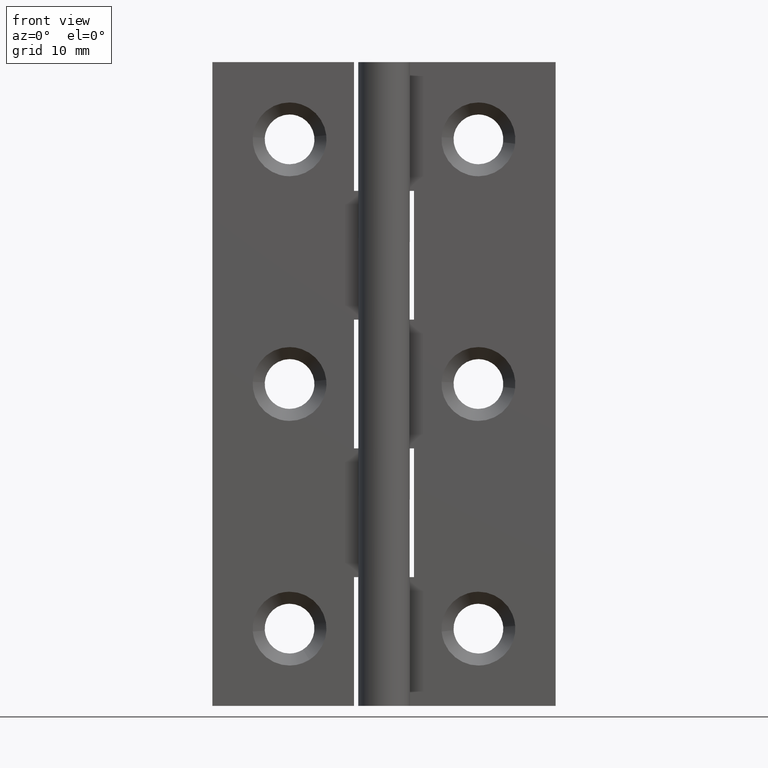
[diagram: clean part render]
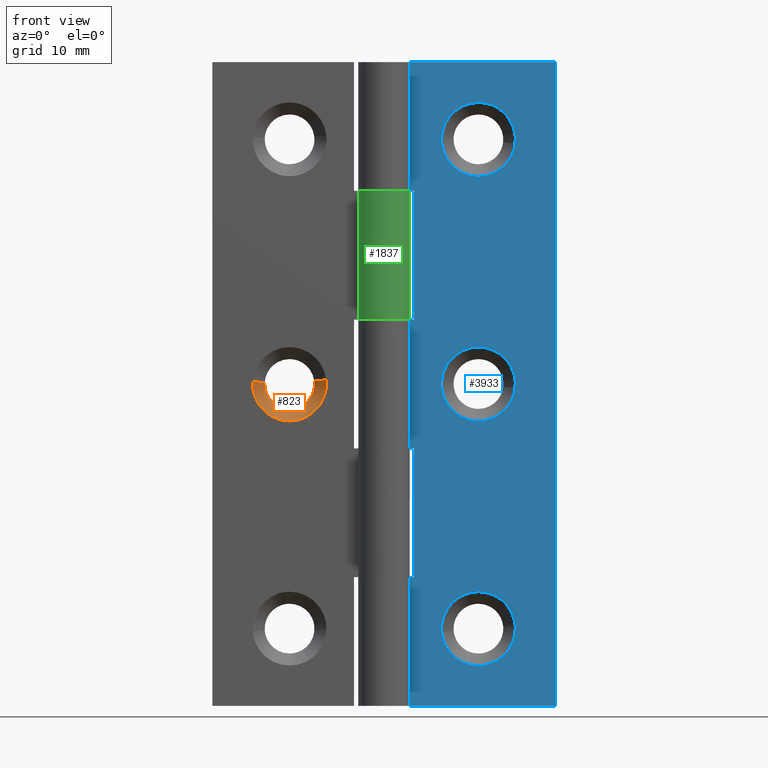
[diagram: same view with three faces highlighted in distinct colors, each labeled with its STEP entity id]
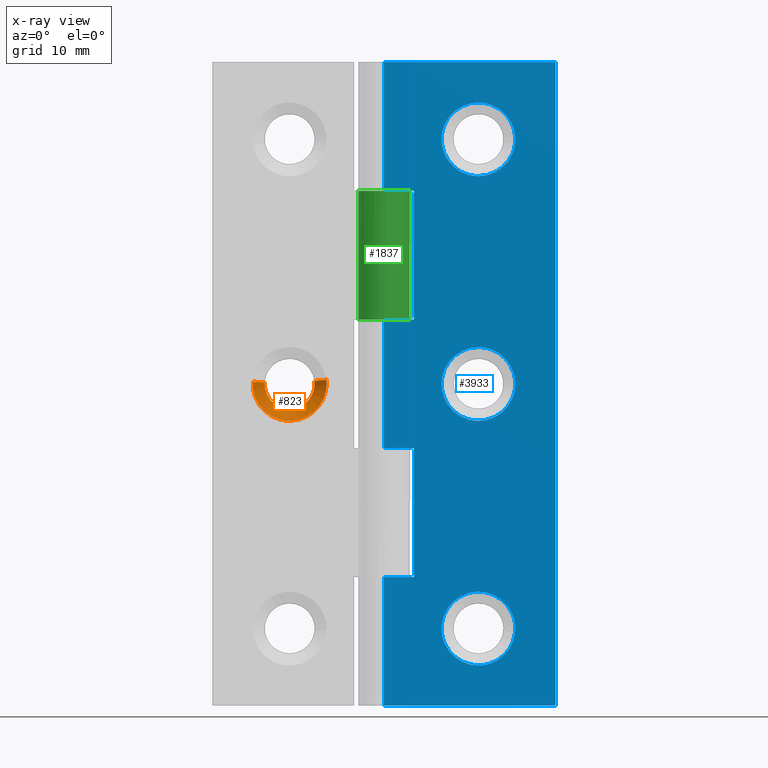
[diagram: x-ray of the same camera — body ghosted, the three highlighted faces saturated]
A machine part, front view with three faces highlighted in distinct colors.
The next image is the same camera in x-ray (body ghosted, the three faces saturated) — at least one of them is partly hidden behind the body in this view.
Their STEP definitions:

[orange] entity #823 — the highlighted face is a freeform B-spline surface patch.
#641=CARTESIAN_POINT('',(-8.118939338921578,2.899999999821298,37.830891928313221));
#642=VERTEX_POINT('',#641);
#658=CARTESIAN_POINT('',(-6.728082468202308,1.499999999970754,37.990632858429848));
#659=VERTEX_POINT('',#658);
#660=CARTESIAN_POINT('',(-8.118939338921578,2.899999999821298,37.830891928313221));
#661=CARTESIAN_POINT('',(-6.728082468202308,1.499999999970754,37.990632858429848));
#662=QUASI_UNIFORM_CURVE('',1,(#660,#661),.UNSPECIFIED.,.F.,.U.);
#663=EDGE_CURVE('',#642,#659,#662,.T.);
#680=CARTESIAN_POINT('',(-15.291979633218290,1.499999999994760,37.762508720016022));
#681=VERTEX_POINT('',#680);
#695=CARTESIAN_POINT('',(-13.894590915422841,2.899999999999957,37.677040764661271));
#696=VERTEX_POINT('',#695);
#697=CARTESIAN_POINT('',(-13.894590915422841,2.899999999999957,37.677040764661271));
#698=CARTESIAN_POINT('',(-15.291979633218290,1.499999999994760,37.762508720016022));
#699=QUASI_UNIFORM_CURVE('',1,(#697,#698),.UNSPECIFIED.,.F.,.U.);
#700=EDGE_CURVE('',#696,#681,#699,.T.);
#718=CARTESIAN_POINT('',(-13.859656197478650,2.935000000000001,37.674904065767372));
#719=CARTESIAN_POINT('',(-14.034560263246012,2.935000000000001,34.815247868288708));
#720=CARTESIAN_POINT('',(-11.174904065767370,2.935000000000001,34.640343802521350));
#721=CARTESIAN_POINT('',(-8.315247868288717,2.935000000000001,34.465439736753979));
#722=CARTESIAN_POINT('',(-8.140343802521352,2.935000000000001,37.325095934232642));
#723=CARTESIAN_POINT('',(-8.124962075998962,2.935000000000001,37.576584939846612));
#724=CARTESIAN_POINT('',(-8.153710760806678,2.935000000000000,37.826898404481149));
#725=CARTESIAN_POINT('',(-15.327787719107411,1.464125000000000,37.764698836355699));
#726=CARTESIAN_POINT('',(-15.592486555463113,1.464125000000000,33.436911117248293));
#727=CARTESIAN_POINT('',(-11.264698836355700,1.464125000000000,33.172212280892587));
#728=CARTESIAN_POINT('',(-6.936911117248284,1.464125000000000,32.907513444536896));
#729=CARTESIAN_POINT('',(-6.672212280892586,1.464125000000000,37.235301163644301));
#730=CARTESIAN_POINT('',(-6.648933661875041,1.464125000000000,37.615903220264371));
#731=CARTESIAN_POINT('',(-6.692441760911923,1.464125000000000,37.994726219731120));
#739=(BOUNDED_SURFACE()B_SPLINE_SURFACE(2,1,((#718,#725),(#719,#726),(#720,#727),(#721,#728),(#722,#729),(#723,#730),(#724,#731)),.UNSPECIFIED.,.F.,.F.,.U.)B_SPLINE_SURFACE_WITH_KNOTS((3,2,2,3),(2,2),(0.0,7.183912919017779,14.367825838035561,15.229895388317690),(0.0,2.080131373555529),.UNSPECIFIED.)GEOMETRIC_REPRESENTATION_ITEM()RATIONAL_B_SPLINE_SURFACE(((1.0,1.0),(0.707106781186548,0.707106781186548),(1.0,1.0),(0.707106781186548,0.707106781186548),(1.0,1.0),(0.964852813742386,0.964852813742386),(0.938140952186599,0.938140952186599)))REPRESENTATION_ITEM('')SURFACE());
#740=CARTESIAN_POINT('',(-8.108939488135558,2.900000000002337,37.272471723233267));
#741=VERTEX_POINT('',#740);
#742=CARTESIAN_POINT('',(-8.108939488135558,2.900000000002337,37.272471723233274));
#743=CARTESIAN_POINT('',(-8.100000000000000,2.900000000000000,37.386060247294623));
#744=CARTESIAN_POINT('',(-8.100000000000000,2.900000000000000,37.500000000000000));
#745=CARTESIAN_POINT('',(-8.100000000000000,2.900000000000000,37.665987982124527));
#746=CARTESIAN_POINT('',(-8.118939338921578,2.899999999821298,37.830891928313221));
#754=(BOUNDED_CURVE()B_SPLINE_CURVE(2,(#742,#743,#744,#745,#746),.UNSPECIFIED.,.F.,.U.)B_SPLINE_CURVE_WITH_KNOTS((3,2,3),(0.236331484496338,0.250000000000000,0.269767755940729),.UNSPECIFIED.)CURVE()GEOMETRIC_REPRESENTATION_ITEM()RATIONAL_B_SPLINE_CURVE((0.969723739881379,0.983986337990924,1.0,0.976840633335204,0.957343736334180))REPRESENTATION_ITEM(''));
#755=EDGE_CURVE('',#741,#642,#754,.T.);
#756=ORIENTED_EDGE('',*,*,#755,.F.);
#757=CARTESIAN_POINT('',(-11.0,2.900000000000000,34.600000000000001));
#758=VERTEX_POINT('',#757);
#759=CARTESIAN_POINT('',(-11.0,2.900000000000000,34.600000000000001));
#760=CARTESIAN_POINT('',(-8.319264690044980,2.900000000000001,34.600000000000009));
#761=CARTESIAN_POINT('',(-8.108939488135558,2.900000000002337,37.272471723233274));
#769=(BOUNDED_CURVE()B_SPLINE_CURVE(2,(#759,#760,#761),.UNSPECIFIED.,.F.,.U.)B_SPLINE_CURVE_WITH_KNOTS((3,3),(0.0,0.236331484496338),.UNSPECIFIED.)CURVE()GEOMETRIC_REPRESENTATION_ITEM()RATIONAL_B_SPLINE_CURVE((1.0,0.723120443195624,0.969723739881379))REPRESENTATION_ITEM(''));
#770=EDGE_CURVE('',#758,#741,#769,.T.);
#771=ORIENTED_EDGE('',*,*,#770,.F.);
#772=CARTESIAN_POINT('',(-13.894590915422796,2.900000000000000,37.677040764661271));
#773=CARTESIAN_POINT('',(-13.899999999999999,2.900000000000000,37.588603013571017));
#774=CARTESIAN_POINT('',(-13.900000000000000,2.900000000000000,37.500000000000000));
#775=CARTESIAN_POINT('',(-13.899999999999999,2.900000000000000,34.600000000000001));
#776=CARTESIAN_POINT('',(-11.0,2.900000000000000,34.600000000000001));
#784=(BOUNDED_CURVE()B_SPLINE_CURVE(2,(#772,#773,#774,#775,#776),.UNSPECIFIED.,.F.,.U.)B_SPLINE_CURVE_WITH_KNOTS((3,2,3),(0.739332962241361,0.750000000000000,1.0),.UNSPECIFIED.)CURVE()GEOMETRIC_REPRESENTATION_ITEM()RATIONAL_B_SPLINE_CURVE((0.976072041671901,0.987502787902671,1.0,0.707106781186548,1.0))REPRESENTATION_ITEM(''));
#785=EDGE_CURVE('',#696,#758,#784,.T.);
#786=ORIENTED_EDGE('',*,*,#785,.F.);
#787=ORIENTED_EDGE('',*,*,#700,.T.);
#788=CARTESIAN_POINT('',(-11.0,1.500000000000000,33.200000000000003));
#789=VERTEX_POINT('',#788);
#790=CARTESIAN_POINT('',(-15.291979633218286,1.499999999994761,37.762508720016029));
#791=CARTESIAN_POINT('',(-15.299999999999999,1.500000000000000,37.631376882199802));
#792=CARTESIAN_POINT('',(-15.300000000000001,1.500000000000000,37.500000000000000));
#793=CARTESIAN_POINT('',(-15.300000000000006,1.500000000000000,33.200000000000010));
#794=CARTESIAN_POINT('',(-11.0,1.500000000000000,33.200000000000003));
#802=(BOUNDED_CURVE()B_SPLINE_CURVE(2,(#790,#791,#792,#793,#794),.UNSPECIFIED.,.F.,.U.)B_SPLINE_CURVE_WITH_KNOTS((3,2,3),(0.739332962240696,0.750000000000000,1.0),.UNSPECIFIED.)CURVE()GEOMETRIC_REPRESENTATION_ITEM()RATIONAL_B_SPLINE_CURVE((0.976072041670475,0.987502787901892,1.0,0.707106781186547,1.0))REPRESENTATION_ITEM(''));
#803=EDGE_CURVE('',#681,#789,#802,.T.);
#804=ORIENTED_EDGE('',*,*,#803,.T.);
#805=CARTESIAN_POINT('',(-11.0,1.500000000000000,33.200000000000003));
#806=CARTESIAN_POINT('',(-6.700000000000000,1.500000000000000,33.200000000000010));
#807=CARTESIAN_POINT('',(-6.699999999999999,1.500000000000000,37.500000000000000));
#808=CARTESIAN_POINT('',(-6.699999999999998,1.500000000000000,37.746120110652136));
#809=CARTESIAN_POINT('',(-6.728082468202308,1.499999999970753,37.990632858429841));
#817=(BOUNDED_CURVE()B_SPLINE_CURVE(2,(#805,#806,#807,#808,#809),.UNSPECIFIED.,.F.,.U.)B_SPLINE_CURVE_WITH_KNOTS((3,2,3),(0.0,0.250000000000000,0.269767755880013),.UNSPECIFIED.)CURVE()GEOMETRIC_REPRESENTATION_ITEM()RATIONAL_B_SPLINE_CURVE((1.0,0.707106781186547,1.0,0.976840633406338,0.957343736453950))REPRESENTATION_ITEM(''));
#818=EDGE_CURVE('',#789,#659,#817,.T.);
#819=ORIENTED_EDGE('',*,*,#818,.T.);
#820=ORIENTED_EDGE('',*,*,#663,.F.);
#821=EDGE_LOOP('',(#756,#771,#786,#787,#804,#819,#820));
#822=FACE_OUTER_BOUND('',#821,.T.);
#823=ADVANCED_FACE('',(#822),#739,.F.);

[blue] entity #3933 — the highlighted face is a freeform B-spline surface patch.
#2291=CARTESIAN_POINT('',(15.269940963366389,1.499999999957097,65.492452790634559));
#2292=VERTEX_POINT('',#2291);
#2298=CARTESIAN_POINT('',(11.0,1.500000000000000,70.299999999999997));
#2299=VERTEX_POINT('',#2298);
#2300=CARTESIAN_POINT('',(15.269940963366388,1.499999999957097,65.492452790634559));
#2301=CARTESIAN_POINT('',(15.299999999999994,1.500000000000000,65.745336285156895));
#2302=CARTESIAN_POINT('',(15.300000000000001,1.500000000000000,66.0));
#2303=CARTESIAN_POINT('',(15.300000000000006,1.500000000000000,70.299999999999997));
#2304=CARTESIAN_POINT('',(11.0,1.500000000000000,70.299999999999997));
#2312=(BOUNDED_CURVE()B_SPLINE_CURVE(2,(#2300,#2301,#2302,#2303,#2304),.UNSPECIFIED.,.F.,.U.)B_SPLINE_CURVE_WITH_KNOTS((3,2,3),(0.229562473489021,0.250000000000000,0.500000000000000),.UNSPECIFIED.)CURVE()GEOMETRIC_REPRESENTATION_ITEM()RATIONAL_B_SPLINE_CURVE((0.956026754135703,0.976055948302456,1.0,0.707106781186547,1.0))REPRESENTATION_ITEM(''));
#2313=EDGE_CURVE('',#2292,#2299,#2312,.T.);
#2315=CARTESIAN_POINT('',(6.708020366764254,1.499999999959754,66.262508720304055));
#2316=VERTEX_POINT('',#2315);
#2317=CARTESIAN_POINT('',(11.0,1.500000000000000,70.299999999999997));
#2318=CARTESIAN_POINT('',(6.954963912875295,1.500000000000000,70.299999999999997));
#2319=CARTESIAN_POINT('',(6.708020366764255,1.499999999959754,66.262508720304055));
#2327=(BOUNDED_CURVE()B_SPLINE_CURVE(2,(#2317,#2318,#2319),.UNSPECIFIED.,.F.,.U.)B_SPLINE_CURVE_WITH_KNOTS((3,3),(0.500000000000000,0.739332962217709),.UNSPECIFIED.)CURVE()GEOMETRIC_REPRESENTATION_ITEM()RATIONAL_B_SPLINE_CURVE((1.0,0.719603993311588,0.976072041621209))REPRESENTATION_ITEM(''));
#2328=EDGE_CURVE('',#2299,#2316,#2327,.T.);
#2362=CARTESIAN_POINT('',(11.0,1.500000000000000,61.700000000000003));
#2363=VERTEX_POINT('',#2362);
#2364=CARTESIAN_POINT('',(6.708020366764255,1.499999999959754,66.262508720304055));
#2365=CARTESIAN_POINT('',(6.699999999999999,1.500000000000000,66.131376882486506));
#2366=CARTESIAN_POINT('',(6.699999999999999,1.500000000000000,66.0));
#2367=CARTESIAN_POINT('',(6.700000000000000,1.500000000000000,61.700000000000017));
#2368=CARTESIAN_POINT('',(11.0,1.500000000000000,61.700000000000003));
#2376=(BOUNDED_CURVE()B_SPLINE_CURVE(2,(#2364,#2365,#2366,#2367,#2368),.UNSPECIFIED.,.F.,.U.)B_SPLINE_CURVE_WITH_KNOTS((3,2,3),(0.739332962217709,0.750000000000000,1.0),.UNSPECIFIED.)CURVE()GEOMETRIC_REPRESENTATION_ITEM()RATIONAL_B_SPLINE_CURVE((0.976072041621209,0.987502787874960,1.0,0.707106781186547,1.0))REPRESENTATION_ITEM(''));
#2377=EDGE_CURVE('',#2316,#2363,#2376,.T.);
#2379=CARTESIAN_POINT('',(11.0,1.500000000000000,61.700000000000003));
#2380=CARTESIAN_POINT('',(14.819150460985009,1.500000000000000,61.699999999999996));
#2381=CARTESIAN_POINT('',(15.269940963366391,1.499999999957098,65.492452790634559));
#2389=(BOUNDED_CURVE()B_SPLINE_CURVE(2,(#2379,#2380,#2381),.UNSPECIFIED.,.F.,.U.)B_SPLINE_CURVE_WITH_KNOTS((3,3),(0.0,0.229562473489021),.UNSPECIFIED.)CURVE()GEOMETRIC_REPRESENTATION_ITEM()RATIONAL_B_SPLINE_CURVE((1.0,0.731050832884092,0.956026754135702))REPRESENTATION_ITEM(''));
#2390=EDGE_CURVE('',#2363,#2292,#2389,.T.);
#2639=CARTESIAN_POINT('',(15.269940963366389,1.499999999957098,36.992452790634530));
#2640=VERTEX_POINT('',#2639);
#2646=CARTESIAN_POINT('',(11.0,1.500000000000000,41.799999999999997));
#2647=VERTEX_POINT('',#2646);
#2648=CARTESIAN_POINT('',(15.269940963366384,1.499999999957098,36.992452790634538));
#2649=CARTESIAN_POINT('',(15.299999999999999,1.500000000000000,37.245336285156895));
#2650=CARTESIAN_POINT('',(15.300000000000001,1.500000000000000,37.500000000000000));
#2651=CARTESIAN_POINT('',(15.300000000000006,1.500000000000000,41.799999999999997));
#2652=CARTESIAN_POINT('',(11.0,1.500000000000000,41.799999999999997));
#2660=(BOUNDED_CURVE()B_SPLINE_CURVE(2,(#2648,#2649,#2650,#2651,#2652),.UNSPECIFIED.,.F.,.U.)B_SPLINE_CURVE_WITH_KNOTS((3,2,3),(0.229562473489020,0.250000000000000,0.500000000000000),.UNSPECIFIED.)CURVE()GEOMETRIC_REPRESENTATION_ITEM()RATIONAL_B_SPLINE_CURVE((0.956026754135701,0.976055948302455,1.0,0.707106781186547,1.0))REPRESENTATION_ITEM(''));
#2661=EDGE_CURVE('',#2640,#2647,#2660,.T.);
#2663=CARTESIAN_POINT('',(6.708020366764255,1.499999999959754,37.762508720304062));
#2664=VERTEX_POINT('',#2663);
#2665=CARTESIAN_POINT('',(11.0,1.500000000000000,41.799999999999997));
#2666=CARTESIAN_POINT('',(6.954963912875295,1.500000000000000,41.799999999999990));
#2667=CARTESIAN_POINT('',(6.708020366764255,1.499999999959754,37.762508720304055));
#2675=(BOUNDED_CURVE()B_SPLINE_CURVE(2,(#2665,#2666,#2667),.UNSPECIFIED.,.F.,.U.)B_SPLINE_CURVE_WITH_KNOTS((3,3),(0.500000000000000,0.739332962217709),.UNSPECIFIED.)CURVE()GEOMETRIC_REPRESENTATION_ITEM()RATIONAL_B_SPLINE_CURVE((1.0,0.719603993311588,0.976072041621209))REPRESENTATION_ITEM(''));
#2676=EDGE_CURVE('',#2647,#2664,#2675,.T.);
#2710=CARTESIAN_POINT('',(11.0,1.500000000000000,33.200000000000003));
#2711=VERTEX_POINT('',#2710);
#2712=CARTESIAN_POINT('',(6.708020366764256,1.499999999959754,37.762508720304055));
#2713=CARTESIAN_POINT('',(6.699999999999999,1.500000000000000,37.631376882486499));
#2714=CARTESIAN_POINT('',(6.699999999999999,1.500000000000000,37.500000000000000));
#2715=CARTESIAN_POINT('',(6.700000000000000,1.500000000000000,33.200000000000010));
#2716=CARTESIAN_POINT('',(11.0,1.500000000000000,33.200000000000003));
#2724=(BOUNDED_CURVE()B_SPLINE_CURVE(2,(#2712,#2713,#2714,#2715,#2716),.UNSPECIFIED.,.F.,.U.)B_SPLINE_CURVE_WITH_KNOTS((3,2,3),(0.739332962217709,0.750000000000000,1.0),.UNSPECIFIED.)CURVE()GEOMETRIC_REPRESENTATION_ITEM()RATIONAL_B_SPLINE_CURVE((0.976072041621209,0.987502787874960,1.0,0.707106781186547,1.0))REPRESENTATION_ITEM(''));
#2725=EDGE_CURVE('',#2664,#2711,#2724,.T.);
#2727=CARTESIAN_POINT('',(11.0,1.500000000000000,33.200000000000003));
#2728=CARTESIAN_POINT('',(14.819150460984993,1.500000000000001,33.200000000000010));
#2729=CARTESIAN_POINT('',(15.269940963366389,1.499999999957098,36.992452790634530));
#2737=(BOUNDED_CURVE()B_SPLINE_CURVE(2,(#2727,#2728,#2729),.UNSPECIFIED.,.F.,.U.)B_SPLINE_CURVE_WITH_KNOTS((3,3),(0.0,0.229562473489020),.UNSPECIFIED.)CURVE()GEOMETRIC_REPRESENTATION_ITEM()RATIONAL_B_SPLINE_CURVE((1.0,0.731050832884092,0.956026754135701))REPRESENTATION_ITEM(''));
#2738=EDGE_CURVE('',#2711,#2640,#2737,.T.);
#2964=CARTESIAN_POINT('',(15.286744535061599,1.499999999977244,9.337374111803527));
#2965=VERTEX_POINT('',#2964);
#2971=CARTESIAN_POINT('',(11.0,1.500000000000000,13.300000000000001));
#2972=VERTEX_POINT('',#2971);
#2973=CARTESIAN_POINT('',(11.0,1.500000000000000,13.300000000000001));
#2974=CARTESIAN_POINT('',(14.974879113810312,1.500000000000000,13.300000000000001));
#2975=CARTESIAN_POINT('',(15.286744535061594,1.499999999977243,9.337374111803527));
#2983=(BOUNDED_CURVE()B_SPLINE_CURVE(2,(#2973,#2974,#2975),.UNSPECIFIED.,.F.,.U.)B_SPLINE_CURVE_WITH_KNOTS((3,3),(0.0,0.236331300619010),.UNSPECIFIED.)CURVE()GEOMETRIC_REPRESENTATION_ITEM()RATIONAL_B_SPLINE_CURVE((1.0,0.723120658621314,0.969723356143106))REPRESENTATION_ITEM(''));
#2984=EDGE_CURVE('',#2972,#2965,#2983,.T.);
#2986=CARTESIAN_POINT('',(6.713255464938400,1.499999999977243,8.662625888196475));
#2987=VERTEX_POINT('',#2986);
#2988=CARTESIAN_POINT('',(6.713255464938400,1.499999999977243,8.662625888196475));
#2989=CARTESIAN_POINT('',(6.699999999999999,1.500000000000000,8.831052539694216));
#2990=CARTESIAN_POINT('',(6.699999999999999,1.500000000000000,9.0));
#2991=CARTESIAN_POINT('',(6.700000000000000,1.500000000000000,13.300000000000001));
#2992=CARTESIAN_POINT('',(11.0,1.500000000000000,13.300000000000001));
#3000=(BOUNDED_CURVE()B_SPLINE_CURVE(2,(#2988,#2989,#2990,#2991,#2992),.UNSPECIFIED.,.F.,.U.)B_SPLINE_CURVE_WITH_KNOTS((3,2,3),(0.736331300619010,0.750000000000000,1.0),.UNSPECIFIED.)CURVE()GEOMETRIC_REPRESENTATION_ITEM()RATIONAL_B_SPLINE_CURVE((0.969723356143106,0.983986122565234,1.0,0.707106781186547,1.0))REPRESENTATION_ITEM(''));
#3001=EDGE_CURVE('',#2987,#2972,#3000,.T.);
#3038=CARTESIAN_POINT('',(11.0,1.500000000000000,4.699999999999999));
#3039=VERTEX_POINT('',#3038);
#3040=CARTESIAN_POINT('',(11.0,1.500000000000000,4.699999999999999));
#3041=CARTESIAN_POINT('',(7.025120886189673,1.500000000000000,4.700000000000000));
#3042=CARTESIAN_POINT('',(6.713255464938400,1.499999999977244,8.662625888196475));
#3050=(BOUNDED_CURVE()B_SPLINE_CURVE(2,(#3040,#3041,#3042),.UNSPECIFIED.,.F.,.U.)B_SPLINE_CURVE_WITH_KNOTS((3,3),(0.500000000000000,0.736331300619010),.UNSPECIFIED.)CURVE()GEOMETRIC_REPRESENTATION_ITEM()RATIONAL_B_SPLINE_CURVE((1.0,0.723120658621313,0.969723356143107))REPRESENTATION_ITEM(''));
#3051=EDGE_CURVE('',#3039,#2987,#3050,.T.);
#3053=CARTESIAN_POINT('',(15.286744535061601,1.499999999977243,9.337374111803527));
#3054=CARTESIAN_POINT('',(15.299999999999995,1.500000000000000,9.168947460305784));
#3055=CARTESIAN_POINT('',(15.300000000000001,1.500000000000000,9.0));
#3056=CARTESIAN_POINT('',(15.300000000000006,1.500000000000000,4.700000000000000));
#3057=CARTESIAN_POINT('',(11.0,1.500000000000000,4.699999999999999));
#3065=(BOUNDED_CURVE()B_SPLINE_CURVE(2,(#3053,#3054,#3055,#3056,#3057),.UNSPECIFIED.,.F.,.U.)B_SPLINE_CURVE_WITH_KNOTS((3,2,3),(0.236331300619010,0.250000000000000,0.500000000000000),.UNSPECIFIED.)CURVE()GEOMETRIC_REPRESENTATION_ITEM()RATIONAL_B_SPLINE_CURVE((0.969723356143106,0.983986122565234,1.0,0.707106781186547,1.0))REPRESENTATION_ITEM(''));
#3066=EDGE_CURVE('',#2965,#3039,#3065,.T.);
#3077=CARTESIAN_POINT('',(3.499999999999800,1.499999999999946,45.0));
#3078=VERTEX_POINT('',#3077);
#3121=CARTESIAN_POINT('',(0.0,1.500000000000000,45.0));
#3122=VERTEX_POINT('',#3121);
#3142=CARTESIAN_POINT('',(3.499999999999800,1.499999999999946,45.0));
#3143=CARTESIAN_POINT('',(0.0,1.500000000000000,45.0));
#3144=QUASI_UNIFORM_CURVE('',1,(#3142,#3143),.UNSPECIFIED.,.F.,.U.);
#3145=EDGE_CURVE('',#3078,#3122,#3144,.T.);
#3157=CARTESIAN_POINT('',(0.0,1.500000000000000,60.0));
#3158=VERTEX_POINT('',#3157);
#3213=CARTESIAN_POINT('',(3.499999999999800,1.499999999999946,60.0));
#3214=VERTEX_POINT('',#3213);
#3220=CARTESIAN_POINT('',(0.0,1.500000000000000,60.0));
#3221=CARTESIAN_POINT('',(3.499999999999800,1.499999999999946,60.0));
#3222=QUASI_UNIFORM_CURVE('',1,(#3220,#3221),.UNSPECIFIED.,.F.,.U.);
#3223=EDGE_CURVE('',#3158,#3214,#3222,.T.);
#3240=CARTESIAN_POINT('',(3.499999999999800,1.499999999999946,60.0));
#3241=CARTESIAN_POINT('',(3.499999999999800,1.499999999999946,45.0));
#3242=QUASI_UNIFORM_CURVE('',1,(#3240,#3241),.UNSPECIFIED.,.F.,.U.);
#3243=EDGE_CURVE('',#3214,#3078,#3242,.T.);
#3253=CARTESIAN_POINT('',(0.0,1.500000000000000,15.0));
#3254=VERTEX_POINT('',#3253);
#3255=CARTESIAN_POINT('',(3.499999999999800,1.499999999999946,15.0));
#3256=VERTEX_POINT('',#3255);
#3257=CARTESIAN_POINT('',(0.0,1.500000000000000,15.0));
#3258=CARTESIAN_POINT('',(3.499999999999800,1.499999999999946,15.0));
#3259=QUASI_UNIFORM_CURVE('',1,(#3257,#3258),.UNSPECIFIED.,.F.,.U.);
#3260=EDGE_CURVE('',#3254,#3256,#3259,.T.);
#3331=CARTESIAN_POINT('',(3.499999999999800,1.499999999999946,30.0));
#3332=VERTEX_POINT('',#3331);
#3333=CARTESIAN_POINT('',(0.0,1.500000000000000,30.0));
#3334=VERTEX_POINT('',#3333);
#3335=CARTESIAN_POINT('',(3.499999999999800,1.499999999999946,30.0));
#3336=CARTESIAN_POINT('',(0.0,1.500000000000000,30.0));
#3337=QUASI_UNIFORM_CURVE('',1,(#3335,#3336),.UNSPECIFIED.,.F.,.U.);
#3338=EDGE_CURVE('',#3332,#3334,#3337,.T.);
#3409=CARTESIAN_POINT('',(3.499999999999800,1.499999999999946,15.0));
#3410=CARTESIAN_POINT('',(3.499999999999800,1.499999999999946,30.0));
#3411=QUASI_UNIFORM_CURVE('',1,(#3409,#3410),.UNSPECIFIED.,.F.,.U.);
#3412=EDGE_CURVE('',#3256,#3332,#3411,.T.);
#3431=CARTESIAN_POINT('',(0.0,1.500000000000000,0.0));
#3432=VERTEX_POINT('',#3431);
#3487=CARTESIAN_POINT('',(20.0,1.500000000000000,0.0));
#3488=VERTEX_POINT('',#3487);
#3494=CARTESIAN_POINT('',(0.0,1.500000000000000,0.0));
#3495=CARTESIAN_POINT('',(20.0,1.500000000000000,0.0));
#3496=QUASI_UNIFORM_CURVE('',1,(#3494,#3495),.UNSPECIFIED.,.F.,.U.);
#3497=EDGE_CURVE('',#3432,#3488,#3496,.T.);
#3509=CARTESIAN_POINT('',(0.0,1.500000000000000,75.0));
#3510=VERTEX_POINT('',#3509);
#3530=CARTESIAN_POINT('',(20.0,1.500000000000000,75.0));
#3531=VERTEX_POINT('',#3530);
#3532=CARTESIAN_POINT('',(0.0,1.500000000000000,75.0));
#3533=CARTESIAN_POINT('',(20.0,1.500000000000000,75.0));
#3534=QUASI_UNIFORM_CURVE('',1,(#3532,#3533),.UNSPECIFIED.,.F.,.U.);
#3535=EDGE_CURVE('',#3510,#3531,#3534,.T.);
#3592=CARTESIAN_POINT('',(20.0,1.500000000000000,75.0));
#3593=CARTESIAN_POINT('',(20.0,1.500000000000000,0.0));
#3594=QUASI_UNIFORM_CURVE('',1,(#3592,#3593),.UNSPECIFIED.,.F.,.U.);
#3595=EDGE_CURVE('',#3531,#3488,#3594,.T.);
#3735=CARTESIAN_POINT('',(0.0,1.500000000000000,15.0));
#3736=CARTESIAN_POINT('',(0.0,1.500000000000000,0.0));
#3737=QUASI_UNIFORM_CURVE('',1,(#3735,#3736),.UNSPECIFIED.,.F.,.U.);
#3738=EDGE_CURVE('',#3254,#3432,#3737,.T.);
#3765=CARTESIAN_POINT('',(0.0,1.500000000000000,45.0));
#3766=CARTESIAN_POINT('',(0.0,1.500000000000000,30.0));
#3767=QUASI_UNIFORM_CURVE('',1,(#3765,#3766),.UNSPECIFIED.,.F.,.U.);
#3768=EDGE_CURVE('',#3122,#3334,#3767,.T.);
#3849=CARTESIAN_POINT('',(0.0,1.500000000000000,75.0));
#3850=CARTESIAN_POINT('',(0.0,1.500000000000000,60.0));
#3851=QUASI_UNIFORM_CURVE('',1,(#3849,#3850),.UNSPECIFIED.,.F.,.U.);
#3852=EDGE_CURVE('',#3510,#3158,#3851,.T.);
#3896=CARTESIAN_POINT('',(-0.998999961236120,1.500000000000000,-3.746249854635448));
#3897=CARTESIAN_POINT('',(-0.998999961236120,1.500000000000000,78.746251866292212));
#3898=CARTESIAN_POINT('',(20.999000497677919,1.500000000000000,-3.746249854635448));
#3899=CARTESIAN_POINT('',(20.999000497677919,1.500000000000000,78.746251866292212));
#3900=B_SPLINE_SURFACE_WITH_KNOTS('',1,1,((#3896,#3898),(#3897,#3899)),.UNSPECIFIED.,.F.,.F.,.U.,(2,2),(2,2),(0.0,82.492501720927663),(0.0,21.998000458914039),.UNSPECIFIED.);
#3901=ORIENTED_EDGE('',*,*,#3852,.T.);
#3902=ORIENTED_EDGE('',*,*,#3223,.T.);
#3903=ORIENTED_EDGE('',*,*,#3243,.T.);
#3904=ORIENTED_EDGE('',*,*,#3145,.T.);
#3905=ORIENTED_EDGE('',*,*,#3768,.T.);
#3906=ORIENTED_EDGE('',*,*,#3338,.F.);
#3907=ORIENTED_EDGE('',*,*,#3412,.F.);
#3908=ORIENTED_EDGE('',*,*,#3260,.F.);
#3909=ORIENTED_EDGE('',*,*,#3738,.T.);
#3910=ORIENTED_EDGE('',*,*,#3497,.T.);
#3911=ORIENTED_EDGE('',*,*,#3595,.F.);
#3912=ORIENTED_EDGE('',*,*,#3535,.F.);
#3913=EDGE_LOOP('',(#3901,#3902,#3903,#3904,#3905,#3906,#3907,#3908,#3909,#3910,#3911,#3912));
#3914=FACE_OUTER_BOUND('',#3913,.T.);
#3915=ORIENTED_EDGE('',*,*,#3051,.T.);
#3916=ORIENTED_EDGE('',*,*,#3001,.T.);
#3917=ORIENTED_EDGE('',*,*,#2984,.T.);
#3918=ORIENTED_EDGE('',*,*,#3066,.T.);
#3919=EDGE_LOOP('',(#3915,#3916,#3917,#3918));
#3920=FACE_BOUND('',#3919,.T.);
#3921=ORIENTED_EDGE('',*,*,#2676,.F.);
#3922=ORIENTED_EDGE('',*,*,#2661,.F.);
#3923=ORIENTED_EDGE('',*,*,#2738,.F.);
#3924=ORIENTED_EDGE('',*,*,#2725,.F.);
#3925=EDGE_LOOP('',(#3921,#3922,#3923,#3924));
#3926=FACE_BOUND('',#3925,.T.);
#3927=ORIENTED_EDGE('',*,*,#2328,.F.);
#3928=ORIENTED_EDGE('',*,*,#2313,.F.);
#3929=ORIENTED_EDGE('',*,*,#2390,.F.);
#3930=ORIENTED_EDGE('',*,*,#2377,.F.);
#3931=EDGE_LOOP('',(#3927,#3928,#3929,#3930));
#3932=FACE_BOUND('',#3931,.T.);
#3933=ADVANCED_FACE('',(#3914,#3920,#3926,#3932),#3900,.F.);

[green] entity #1837 — the highlighted face is a freeform B-spline surface patch.
#1337=CARTESIAN_POINT('',(-2.602085E-015,3.0,45.0));
#1338=VERTEX_POINT('',#1337);
#1344=CARTESIAN_POINT('',(-2.626309197333780,1.450000000000000,45.0));
#1345=VERTEX_POINT('',#1344);
#1346=CARTESIAN_POINT('',(0.0,3.0,45.0));
#1347=CARTESIAN_POINT('',(2.290598042424806,3.000000000000001,45.0));
#1348=CARTESIAN_POINT('',(2.894028888043300,0.790314364775726,45.0));
#1349=CARTESIAN_POINT('',(3.497459733661795,-1.419371270448550,45.0));
#1350=CARTESIAN_POINT('',(1.524795068197693,-2.583602136552762,45.0));
#1351=CARTESIAN_POINT('',(-0.447869597266409,-3.747833002656973,45.0));
#1352=CARTESIAN_POINT('',(-2.090650590886090,-2.151552952364325,45.0));
#1353=CARTESIAN_POINT('',(-3.733431584505770,-0.555272902071677,45.0));
#1354=CARTESIAN_POINT('',(-2.626309197333780,1.449999999999999,45.0));
#1362=(BOUNDED_CURVE()B_SPLINE_CURVE(2,(#1346,#1347,#1348,#1349,#1350,#1351,#1352,#1353,#1354),.UNSPECIFIED.,.F.,.U.)B_SPLINE_CURVE_WITH_KNOTS((3,2,2,2,3),(0.0,0.250000000000000,0.500000000000000,0.750000000000000,1.0),.UNSPECIFIED.)CURVE()GEOMETRIC_REPRESENTATION_ITEM()RATIONAL_B_SPLINE_CURVE((1.0,0.794807562115481,1.0,0.794807562115481,1.0,0.794807562115481,1.0,0.794807562115481,1.0))REPRESENTATION_ITEM(''));
#1363=EDGE_CURVE('',#1338,#1345,#1362,.T.);
#1641=CARTESIAN_POINT('',(-2.626309197333780,1.450000000000000,60.0));
#1642=VERTEX_POINT('',#1641);
#1648=CARTESIAN_POINT('',(-2.602085E-015,3.0,60.0));
#1649=VERTEX_POINT('',#1648);
#1650=CARTESIAN_POINT('',(-2.626309197333780,1.450000000000000,60.0));
#1651=CARTESIAN_POINT('',(-3.733431584505770,-0.555272902071676,60.000000000000007));
#1652=CARTESIAN_POINT('',(-2.090650590886091,-2.151552952364325,60.0));
#1653=CARTESIAN_POINT('',(-0.447869597266411,-3.747833002656974,60.000000000000007));
#1654=CARTESIAN_POINT('',(1.524795068197692,-2.583602136552762,60.0));
#1655=CARTESIAN_POINT('',(3.497459733661794,-1.419371270448551,60.000000000000007));
#1656=CARTESIAN_POINT('',(2.894028888043301,0.790314364775725,60.0));
#1657=CARTESIAN_POINT('',(2.290598042424807,3.0,60.000000000000007));
#1658=CARTESIAN_POINT('',(0.0,3.0,60.0));
#1666=(BOUNDED_CURVE()B_SPLINE_CURVE(2,(#1650,#1651,#1652,#1653,#1654,#1655,#1656,#1657,#1658),.UNSPECIFIED.,.F.,.U.)B_SPLINE_CURVE_WITH_KNOTS((3,2,2,2,3),(0.0,0.250000000000000,0.500000000000000,0.750000000000000,1.0),.UNSPECIFIED.)CURVE()GEOMETRIC_REPRESENTATION_ITEM()RATIONAL_B_SPLINE_CURVE((1.0,0.794807562115481,1.0,0.794807562115481,1.0,0.794807562115481,1.0,0.794807562115481,1.0))REPRESENTATION_ITEM(''));
#1667=EDGE_CURVE('',#1642,#1649,#1666,.T.);
#1778=CARTESIAN_POINT('',(-2.602085E-015,3.0,45.0));
#1779=CARTESIAN_POINT('',(-2.602085E-015,3.0,60.0));
#1780=QUASI_UNIFORM_CURVE('',1,(#1778,#1779),.UNSPECIFIED.,.F.,.U.);
#1781=EDGE_CURVE('',#1338,#1649,#1780,.T.);
#1805=CARTESIAN_POINT('',(-0.083590388003215,2.998835215051582,44.624999999999993));
#1806=CARTESIAN_POINT('',(-0.083590388003215,2.998835215051582,60.384375000000013));
#1807=CARTESIAN_POINT('',(3.597715494687123,3.101448985074057,44.625000000000000));
#1808=CARTESIAN_POINT('',(3.597715494687123,3.101448985074057,60.384375000000006));
#1809=CARTESIAN_POINT('',(2.953784589413351,-0.524553714450863,44.624999999999993));
#1810=CARTESIAN_POINT('',(2.953784589413351,-0.524553714450863,60.384375000000013));
#1811=CARTESIAN_POINT('',(2.309853684139579,-4.150556413975786,44.625000000000000));
#1812=CARTESIAN_POINT('',(2.309853684139579,-4.150556413975786,60.384375000000006));
#1813=CARTESIAN_POINT('',(-1.111023909722692,-2.786687257663569,44.624999999999993));
#1814=CARTESIAN_POINT('',(-1.111023909722692,-2.786687257663569,60.384375000000013));
#1815=CARTESIAN_POINT('',(-4.531901503584964,-1.422818101351353,44.625000000000000));
#1816=CARTESIAN_POINT('',(-4.531901503584964,-1.422818101351353,60.384375000000006));
#1817=CARTESIAN_POINT('',(-2.504447473759407,1.651587978637567,44.624999999999993));
#1818=CARTESIAN_POINT('',(-2.504447473759407,1.651587978637567,60.384375000000013));
#1826=(BOUNDED_SURFACE()B_SPLINE_SURFACE(1,2,((#1805,#1807,#1809,#1811,#1813,#1815,#1817),(#1806,#1808,#1810,#1812,#1814,#1816,#1818)),.UNSPECIFIED.,.F.,.F.,.U.)B_SPLINE_SURFACE_WITH_KNOTS((2,2),(3,2,2,3),(0.0,15.759375000000009),(0.0,5.702297214197751,11.404594428395500,17.106891642593251),.UNSPECIFIED.)GEOMETRIC_REPRESENTATION_ITEM()RATIONAL_B_SPLINE_SURFACE(((1.0,0.631578351302498,1.0,0.631578351302498,1.0,0.631578351302498,1.0),(1.0,0.631578351302498,1.0,0.631578351302498,1.0,0.631578351302498,1.0)))REPRESENTATION_ITEM('')SURFACE());
#1827=ORIENTED_EDGE('',*,*,#1363,.F.);
#1828=ORIENTED_EDGE('',*,*,#1781,.T.);
#1829=ORIENTED_EDGE('',*,*,#1667,.F.);
#1830=CARTESIAN_POINT('',(-2.626309197333780,1.450000000000000,45.0));
#1831=CARTESIAN_POINT('',(-2.626309197333780,1.450000000000000,60.0));
#1832=QUASI_UNIFORM_CURVE('',1,(#1830,#1831),.UNSPECIFIED.,.F.,.U.);
#1833=EDGE_CURVE('',#1345,#1642,#1832,.T.);
#1834=ORIENTED_EDGE('',*,*,#1833,.F.);
#1835=EDGE_LOOP('',(#1827,#1828,#1829,#1834));
#1836=FACE_OUTER_BOUND('',#1835,.T.);
#1837=ADVANCED_FACE('',(#1836),#1826,.T.);